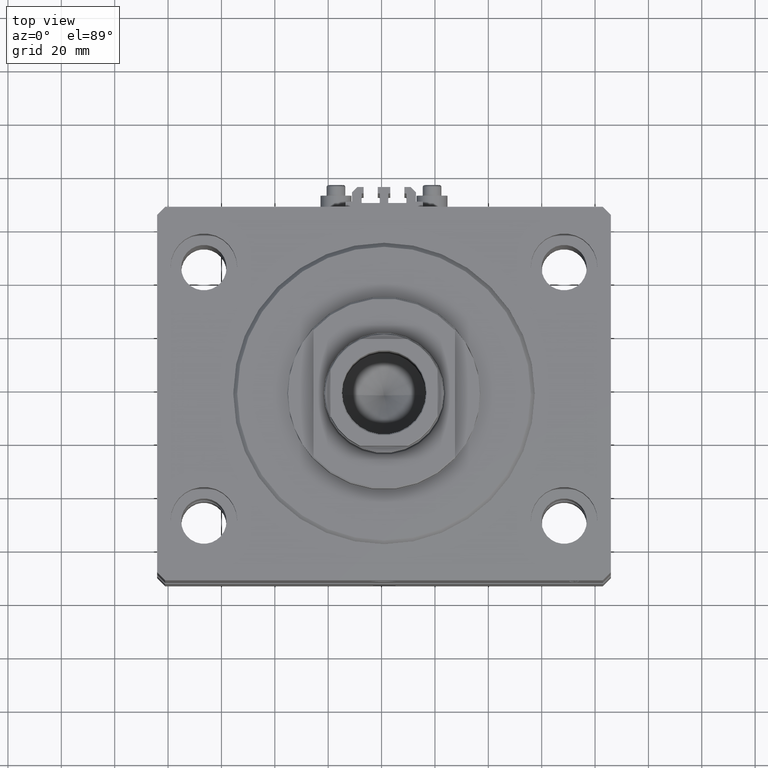
[diagram: clean part render]
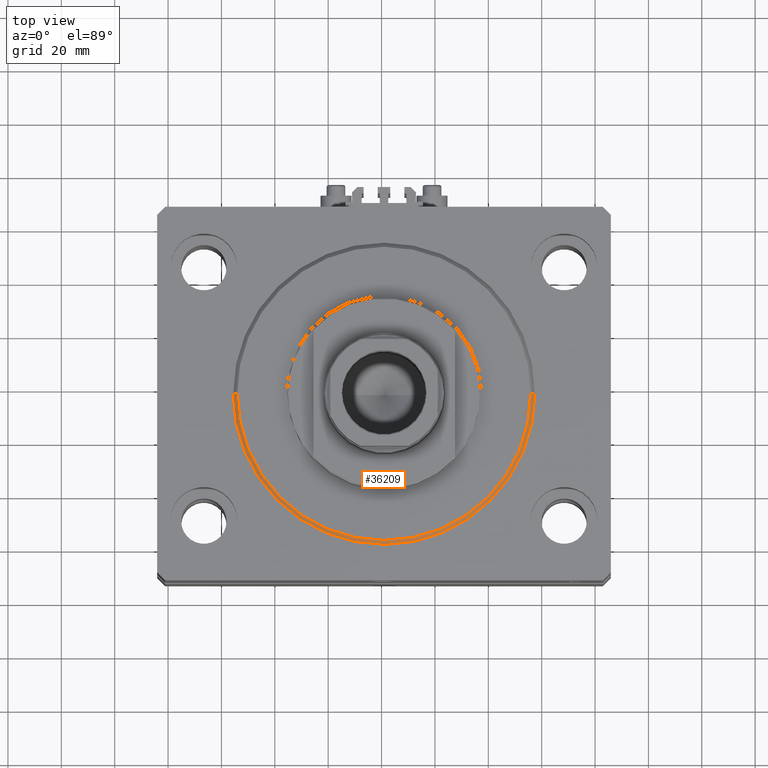
[diagram: same view with one face highlighted and labeled with its STEP entity id]
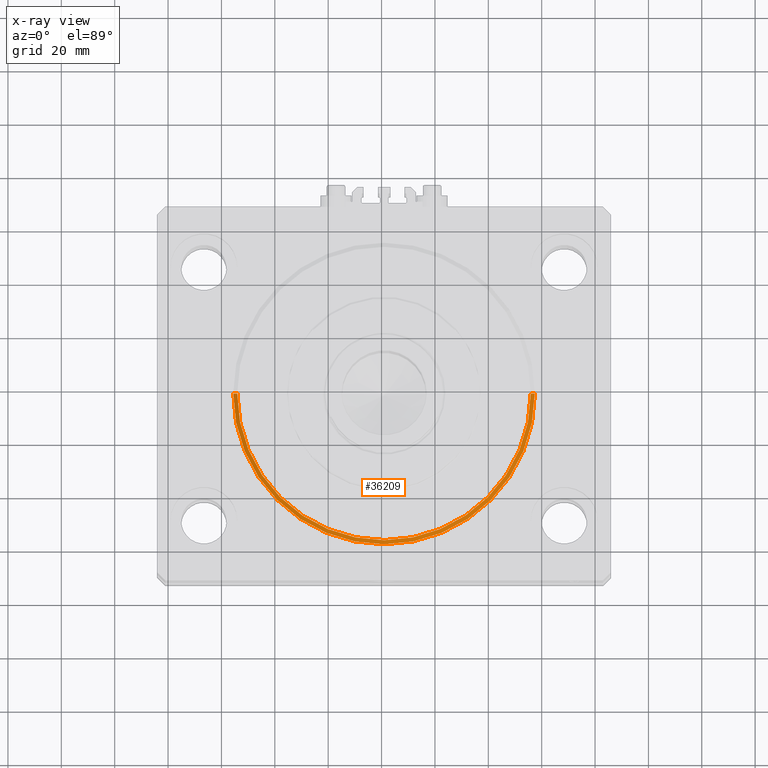
[diagram: x-ray of the same camera — body ghosted, the highlighted face saturated]
A machine part, top view. The second image highlights one B-rep face of the part: STEP entity #36209.
The next image is the same camera in x-ray: the body ghosted, the highlighted face saturated — about 0% of this face is hidden behind the body in this view.
In plain terms, the highlighted conical surface has half-angle 45 deg.
Its self-contained STEP definition (entity closure, byte-faithful):
#785 = ORIENTED_EDGE ( 'NONE', *, *, #18608, .F. ) ;
#4938 = VECTOR ( 'NONE', #28462, 1000.000000000000000 ) ;
#5514 = AXIS2_PLACEMENT_3D ( 'NONE', #41360, #7811, #7091 ) ;
#5723 = LINE ( 'NONE', #13294, #35910 ) ;
#7091 = DIRECTION ( 'NONE',  ( 1.000000000000000000, 0.000000000000000000, 0.000000000000000000 ) ) ;
#7200 = VERTEX_POINT ( 'NONE', #31683 ) ;
#7811 = DIRECTION ( 'NONE',  ( -0.000000000000000000, -0.000000000000000000, 1.000000000000000000 ) ) ;
#9284 = CARTESIAN_POINT ( 'NONE',  ( -55.00000000000002132, 6.827405905246496343E-15, 0.000000000000000000 ) ) ;
#10074 = CARTESIAN_POINT ( 'NONE',  ( 0.000000000000000000, 0.000000000000000000, 0.000000000000000000 ) ) ;
#10079 = LINE ( 'NONE', #44133, #4938 ) ;
#10756 = FACE_OUTER_BOUND ( 'NONE', #37942, .T. ) ;
#13294 = CARTESIAN_POINT ( 'NONE',  ( -56.50000000000000711, 6.919254415182546126E-15, 1.499999999999994449 ) ) ;
#13541 = DIRECTION ( 'NONE',  ( -0.7071067811865459074, 8.659560562354911904E-17, 0.7071067811865491270 ) ) ;
#15189 = EDGE_CURVE ( 'NONE', #21785, #25845, #5723, .T. ) ;
#15468 = EDGE_CURVE ( 'NONE', #25845, #7200, #36676, .T. ) ;
#15724 = ORIENTED_EDGE ( 'NONE', *, *, #15468, .F. ) ;
#15836 = ORIENTED_EDGE ( 'NONE', *, *, #15189, .F. ) ;
#18608 = EDGE_CURVE ( 'NONE', #36383, #21785, #33688, .T. ) ;
#21000 = CARTESIAN_POINT ( 'NONE',  ( 0.000000000000000000, 0.000000000000000000, 1.499999999999994449 ) ) ;
#21123 = CONICAL_SURFACE ( 'NONE', #5514, 56.50000000000000711, 0.7853981633974460586 ) ;
#21785 = VERTEX_POINT ( 'NONE', #9284 ) ;
#25007 = DIRECTION ( 'NONE',  ( 1.000000000000000000, 0.000000000000000000, 0.000000000000000000 ) ) ;
#25845 = VERTEX_POINT ( 'NONE', #37553 ) ;
#28462 = DIRECTION ( 'NONE',  ( 0.7071067811865459074, 0.000000000000000000, 0.7071067811865491270 ) ) ;
#31287 = CARTESIAN_POINT ( 'NONE',  ( 55.00000000000002132, 0.000000000000000000, 0.000000000000000000 ) ) ;
#31683 = CARTESIAN_POINT ( 'NONE',  ( 56.50000000000000711, 6.919254415182546126E-15, 1.499999999999994449 ) ) ;
#33346 = DIRECTION ( 'NONE',  ( -0.000000000000000000, -0.000000000000000000, -1.000000000000000000 ) ) ;
#33688 = CIRCLE ( 'NONE', #45422, 55.00000000000002132 ) ;
#35347 = ORIENTED_EDGE ( 'NONE', *, *, #47740, .T. ) ;
#35910 = VECTOR ( 'NONE', #13541, 1000.000000000000000 ) ;
#36209 = ADVANCED_FACE ( 'NONE', ( #10756 ), #21123, .T. ) ;
#36383 = VERTEX_POINT ( 'NONE', #31287 ) ;
#36676 = CIRCLE ( 'NONE', #39831, 56.50000000000000711 ) ;
#36920 = DIRECTION ( 'NONE',  ( 1.000000000000000000, 0.000000000000000000, 0.000000000000000000 ) ) ;
#37553 = CARTESIAN_POINT ( 'NONE',  ( -56.50000000000000711, 0.000000000000000000, 1.499999999999994449 ) ) ;
#37942 = EDGE_LOOP ( 'NONE', ( #15836, #785, #35347, #15724 ) ) ;
#39831 = AXIS2_PLACEMENT_3D ( 'NONE', #21000, #46978, #36920 ) ;
#41360 = CARTESIAN_POINT ( 'NONE',  ( 0.000000000000000000, 0.000000000000000000, 1.499999999999994449 ) ) ;
#44133 = CARTESIAN_POINT ( 'NONE',  ( 56.50000000000000711, 0.000000000000000000, 1.499999999999994449 ) ) ;
#45422 = AXIS2_PLACEMENT_3D ( 'NONE', #10074, #33346, #25007 ) ;
#46978 = DIRECTION ( 'NONE',  ( -0.000000000000000000, -0.000000000000000000, 1.000000000000000000 ) ) ;
#47740 = EDGE_CURVE ( 'NONE', #36383, #7200, #10079, .T. ) ;